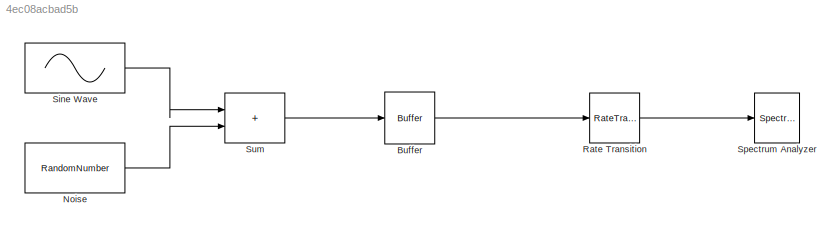
MODEL slx_4ec08acbad5b
KIND model
CONFIG AbsTol = auto
CONFIG EnableMultiTasking = off
CONFIG FixedStep = auto
CONFIG MaxStep = auto
CONFIG MinStep = auto
CONFIG RelTol = 1e-3
CONFIG SampleTimeConstraint = Unconstrained
CONFIG SolverName = VariableStepAuto
CONFIG StartTime = 0.0
CONFIG StopTime = 10.0
BLOCK [Buffer] Buffer
  N = 1024
  OutputFrames = off
BLOCK [RandomNumber] Noise
  SampleTime = 0.001
  Variance = 0.2
BLOCK [RateTransition] Rate Transition
BLOCK [Sin] Sine Wave
  Frequency = 50
  SampleTime = 0.001
BLOCK [SpectrumAnalyzer] Spectrum Analyzer
  FrequencyResolutionMethod = Window length
  GraphicalSettings = {"GraphicalSettings":{"Style":{"BackgroundColor":[0.12941176470588237,0.12941176470588237,0.12941176470588237],"AxesColor":[0.07058823529411765,0.07058823529411765,0.07058823529411765],"LabelsColor":[0.8509803921568627,0.8509803921568627,0.8509803921568627],"PreserveColors":false,"Visible":[true],"LineStyle":["-"],"LineWidth":[1.5],"BarWidth":[0.9],"LineColor":[[1,0.9098039215686274,0.392156862745...<+999ch>
  Method = Welch
  ScopeFrameLocation = window
  SelectedToolstripTab = spectrumAnalyzerToolstrip.estimationTab
  WasSavedAsWebScope = on
  WindowInvariantSamplesPerUpdate = on
  WindowPosition = [880.000000,470.000000,800.000000,500.000000,]
  YLimits = [-2118.287664939324,1755.3679089298919]
BLOCK [Sum] Sum
  IconShape = rectangular
  Inputs = |++
LINE Buffer:1 -> Rate Transition:1
LINE Noise:1 -> Sum:2
LINE Rate Transition:1 -> Spectrum Analyzer:1
LINE Sine Wave:1 -> Sum:1
LINE Sum:1 -> Buffer:1
